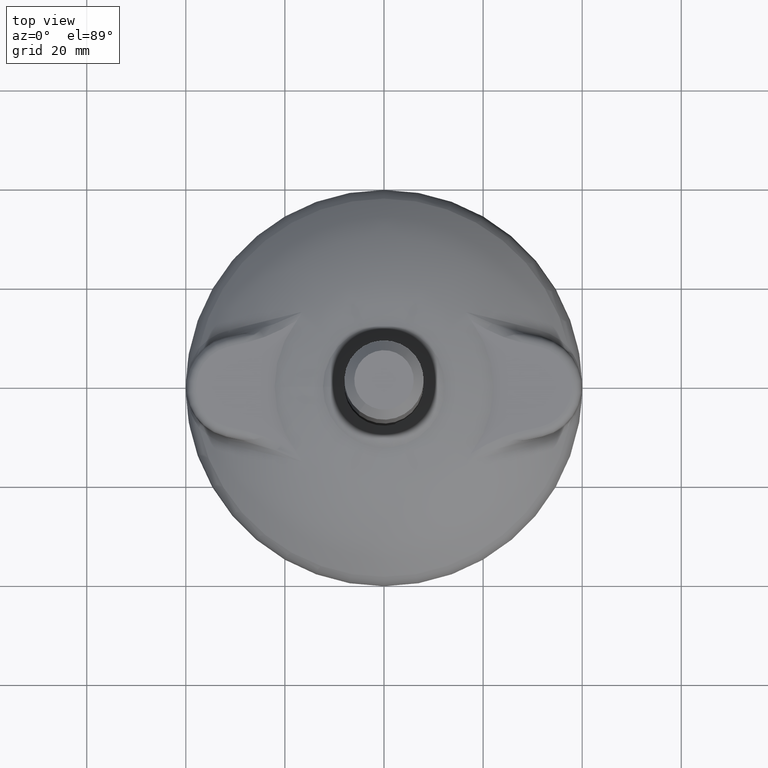
[diagram: clean part render]
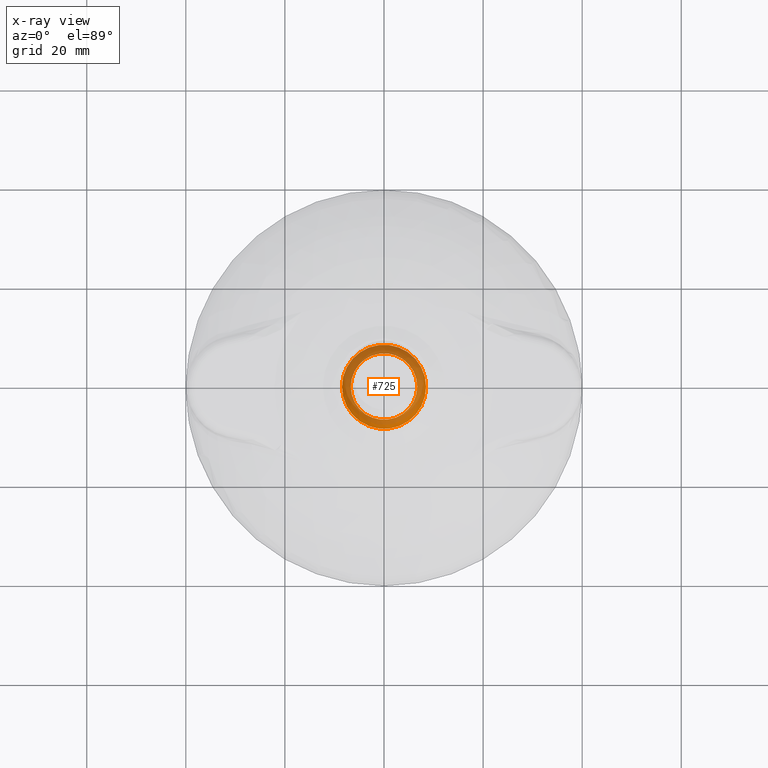
[diagram: x-ray — body ghosted, one internal face saturated and labeled with its STEP entity id]
A machine part, top view, then the same camera in x-ray: the body is ghosted and one INTERNAL B-rep face — a face not visible from any outside direction — is saturated and labeled: STEP entity #725.
In plain terms, the highlighted spherical surface has radius 9 mm.
Its self-contained STEP definition (entity closure, byte-faithful):
#27=SPHERICAL_SURFACE('',#798,9.);
#138=FACE_BOUND('',#250,.T.);
#194=FACE_OUTER_BOUND('',#249,.T.);
#249=EDGE_LOOP('',(#637));
#250=EDGE_LOOP('',(#638));
#304=CIRCLE('',#794,8.48528137423857);
#308=CIRCLE('',#799,6.70820393249937);
#366=VERTEX_POINT('',#1724);
#370=VERTEX_POINT('',#1763);
#460=EDGE_CURVE('',#366,#366,#304,.T.);
#465=EDGE_CURVE('',#370,#370,#308,.T.);
#637=ORIENTED_EDGE('',*,*,#465,.T.);
#638=ORIENTED_EDGE('',*,*,#460,.T.);
#725=ADVANCED_FACE('',(#194,#138),#27,.F.);
#794=AXIS2_PLACEMENT_3D('',#1725,#943,#944);
#798=AXIS2_PLACEMENT_3D('',#1762,#951,#952);
#799=AXIS2_PLACEMENT_3D('',#1764,#953,#954);
#943=DIRECTION('center_axis',(0.,0.,1.));
#944=DIRECTION('ref_axis',(-1.,0.,0.));
#951=DIRECTION('center_axis',(6.12323399573677E-17,0.,1.));
#952=DIRECTION('ref_axis',(1.,0.,0.));
#953=DIRECTION('center_axis',(0.,0.,-1.));
#954=DIRECTION('ref_axis',(1.,0.,0.));
#1724=CARTESIAN_POINT('',(8.48528137423857,1.03914726748259E-15,-14.));
#1725=CARTESIAN_POINT('Origin',(0.,0.,-14.));
#1762=CARTESIAN_POINT('Origin',(0.,0.,-11.));
#1763=CARTESIAN_POINT('',(-6.70820393249937,0.,-17.));
#1764=CARTESIAN_POINT('Origin',(0.,0.,-17.));